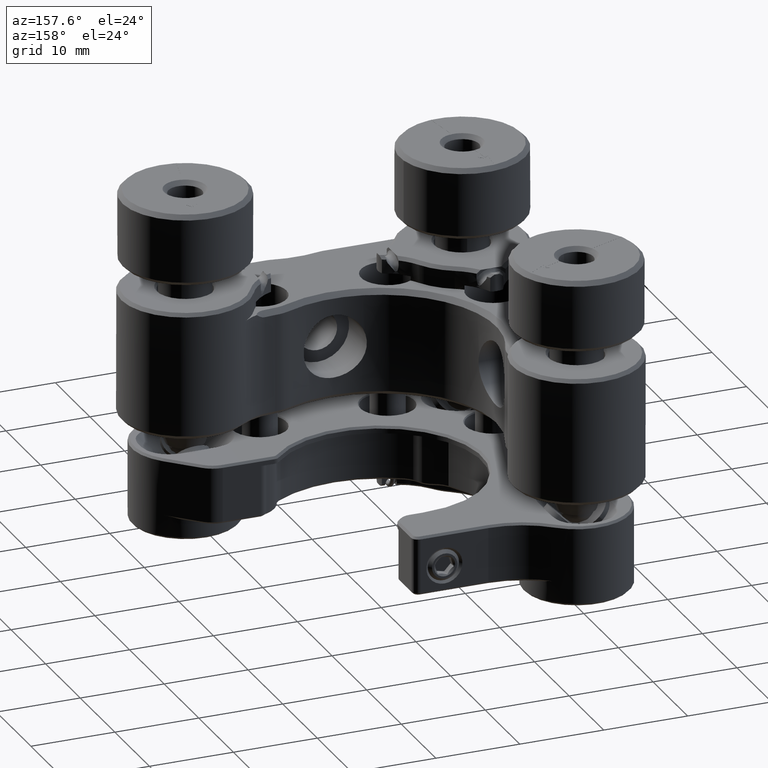
[diagram: clean part render]
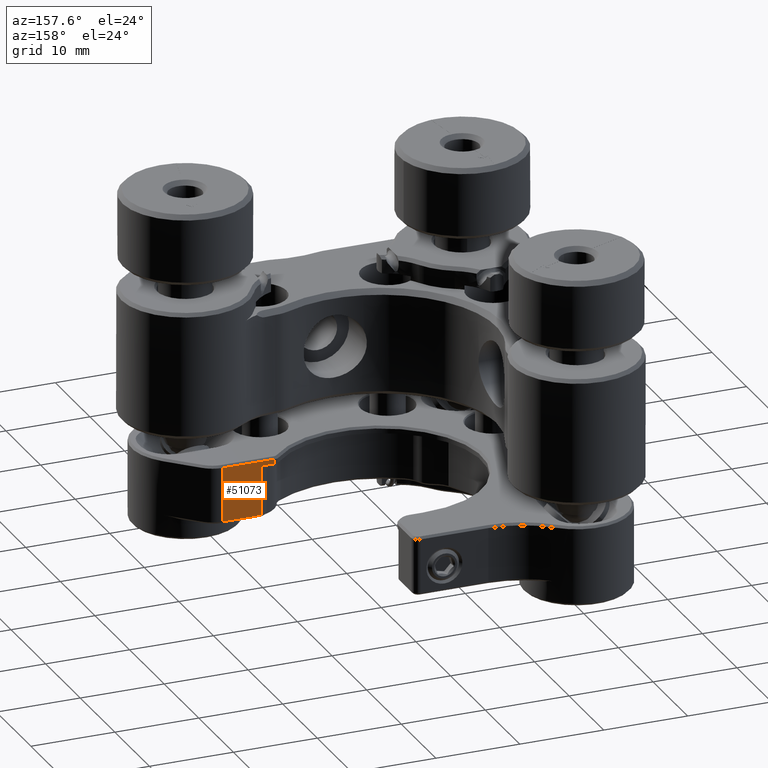
[diagram: same view with one face highlighted and labeled with its STEP entity id]
A machine part, auxiliary view. The second image highlights one B-rep face of the part: STEP entity #51073.
In plain terms, the highlighted planar face has unit normal (0, -1, -0).
Its self-contained STEP definition (entity closure, byte-faithful):
#890 = DIRECTION ( 'NONE',  ( 0.000000000000000000, 2.775557561562890118E-17, -1.000000000000000000 ) ) ;
#2004 = DIRECTION ( 'NONE',  ( 0.000000000000000000, 2.775557561562890118E-17, -1.000000000000000000 ) ) ;
#2136 = CARTESIAN_POINT ( 'NONE',  ( 36.38837376055408868, 20.76409739724833514, 15.76670909685328681 ) ) ;
#2550 = DIRECTION ( 'NONE',  ( 0.000000000000000000, 2.775557561562890118E-17, -1.000000000000000000 ) ) ;
#3022 = ORIENTED_EDGE ( 'NONE', *, *, #53643, .F. ) ;
#3430 = DIRECTION ( 'NONE',  ( -6.132303471446131909E-21, -2.775557561562890118E-17, 1.000000000000000000 ) ) ;
#9313 = CARTESIAN_POINT ( 'NONE',  ( 34.79688247451601057, 20.76409739724833514, 22.50170909685370546 ) ) ;
#9889 = VECTOR ( 'NONE', #36975, 1000.000000000000000 ) ;
#10558 = EDGE_CURVE ( 'NONE', #45045, #23380, #15124, .T. ) ;
#11607 = CARTESIAN_POINT ( 'NONE',  ( 34.79688247451601057, 20.76409739724833514, 21.70170909685329619 ) ) ;
#11637 = PLANE ( 'NONE',  #46711 ) ;
#12262 = FACE_OUTER_BOUND ( 'NONE', #40358, .T. ) ;
#15124 = LINE ( 'NONE', #9313, #27283 ) ;
#16805 = VECTOR ( 'NONE', #32042, 1000.000000000000000 ) ;
#18128 = VERTEX_POINT ( 'NONE', #38972 ) ;
#18287 = LINE ( 'NONE', #47755, #63293 ) ;
#21241 = CARTESIAN_POINT ( 'NONE',  ( 36.38837376055408868, 20.76409739724833514, 21.70170909685329619 ) ) ;
#22021 = LINE ( 'NONE', #36907, #39440 ) ;
#22085 = CARTESIAN_POINT ( 'NONE',  ( 46.59922866646579109, 20.76409739724833514, 21.70170909685329619 ) ) ;
#22920 = CARTESIAN_POINT ( 'NONE',  ( 40.96876716756304404, 20.76409739722322456, 15.76670909683865851 ) ) ;
#23380 = VERTEX_POINT ( 'NONE', #11607 ) ;
#24676 = ORIENTED_EDGE ( 'NONE', *, *, #52878, .F. ) ;
#27283 = VECTOR ( 'NONE', #890, 1000.000000000000000 ) ;
#28187 = ORIENTED_EDGE ( 'NONE', *, *, #35640, .F. ) ;
#31444 = CARTESIAN_POINT ( 'NONE',  ( 36.38837376055408868, 20.76409739724833514, 22.50170909685370546 ) ) ;
#32042 = DIRECTION ( 'NONE',  ( 1.000000000000000000, 3.066151735723662541E-21, 3.066151735723662541E-21 ) ) ;
#32435 = LINE ( 'NONE', #22085, #9889 ) ;
#33081 = EDGE_CURVE ( 'NONE', #23380, #36287, #32435, .T. ) ;
#34210 = EDGE_CURVE ( 'NONE', #45045, #18128, #56627, .T. ) ;
#35640 = EDGE_CURVE ( 'NONE', #36794, #42339, #22021, .T. ) ;
#36245 = CARTESIAN_POINT ( 'NONE',  ( 34.79688247451600347, 20.76409739724593706, 22.25170909686685761 ) ) ;
#36287 = VERTEX_POINT ( 'NONE', #21241 ) ;
#36794 = VERTEX_POINT ( 'NONE', #2136 ) ;
#36907 = CARTESIAN_POINT ( 'NONE',  ( 42.21140785468232082, 20.76409739724833514, 15.76670909685328681 ) ) ;
#36975 = DIRECTION ( 'NONE',  ( 1.000000000000000000, -1.702056126997398298E-37, 6.132303471447325083E-21 ) ) ;
#37248 = LINE ( 'NONE', #31444, #57104 ) ;
#38972 = CARTESIAN_POINT ( 'NONE',  ( 40.96876716756303694, 20.76409739720734748, 22.25170909689422416 ) ) ;
#39440 = VECTOR ( 'NONE', #61501, 1000.000000000000000 ) ;
#39622 = ORIENTED_EDGE ( 'NONE', *, *, #34210, .T. ) ;
#40358 = EDGE_LOOP ( 'NONE', ( #39622, #24676, #28187, #3022, #43200, #49751 ) ) ;
#42339 = VERTEX_POINT ( 'NONE', #22920 ) ;
#43200 = ORIENTED_EDGE ( 'NONE', *, *, #33081, .F. ) ;
#45045 = VERTEX_POINT ( 'NONE', #36245 ) ;
#46711 = AXIS2_PLACEMENT_3D ( 'NONE', #61449, #55955, #2550 ) ;
#47755 = CARTESIAN_POINT ( 'NONE',  ( 40.96876716756304404, 20.76409739724833159, 22.50170909685370546 ) ) ;
#49751 = ORIENTED_EDGE ( 'NONE', *, *, #10558, .F. ) ;
#51073 = ADVANCED_FACE ( 'NONE', ( #12262 ), #11637, .F. ) ;
#52878 = EDGE_CURVE ( 'NONE', #42339, #18128, #18287, .T. ) ;
#53643 = EDGE_CURVE ( 'NONE', #36287, #36794, #37248, .T. ) ;
#55955 = DIRECTION ( 'NONE',  ( 0.000000000000000000, -1.000000000000000000, -2.775557561562890118E-17 ) ) ;
#56627 = LINE ( 'NONE', #62438, #16805 ) ;
#57104 = VECTOR ( 'NONE', #2004, 1000.000000000000000 ) ;
#61449 = CARTESIAN_POINT ( 'NONE',  ( 42.21140785468232082, 20.76409739724833514, 22.50170909685370546 ) ) ;
#61501 = DIRECTION ( 'NONE',  ( 1.000000000000000000, 0.000000000000000000, 0.000000000000000000 ) ) ;
#62438 = CARTESIAN_POINT ( 'NONE',  ( 46.59922866646579109, 20.76409739724833159, 22.25170909685369836 ) ) ;
#63293 = VECTOR ( 'NONE', #3430, 1000.000000000000000 ) ;